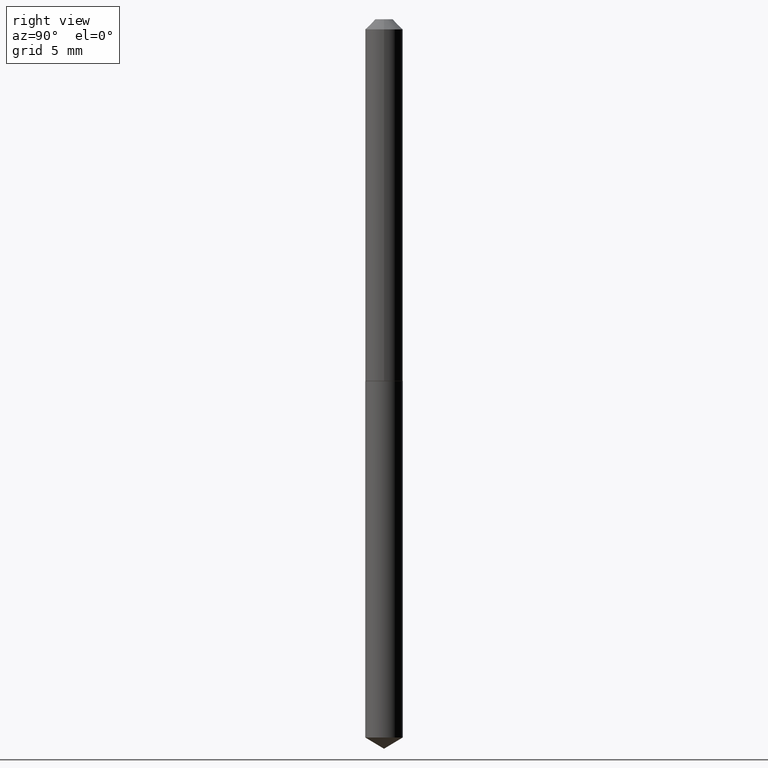
[diagram: clean part render]
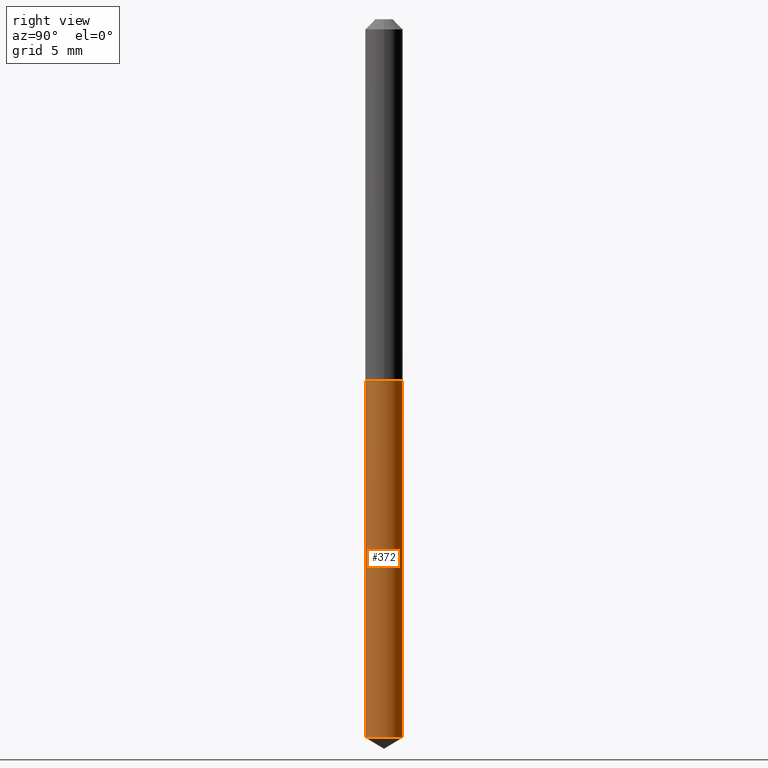
[diagram: same view with one face highlighted and labeled with its STEP entity id]
A machine part, right view. The second image highlights one B-rep face of the part: STEP entity #372.
In plain terms, the highlighted cylindrical surface (edge-blend (fillet) strip) has radius 1.4732 mm, axis along (-0, 0, 1).
Its self-contained STEP definition (entity closure, byte-faithful):
#9 = EDGE_CURVE ( 'NONE', #322, #239, #226, .T. ) ;
#20 = AXIS2_PLACEMENT_3D ( 'NONE', #179, #325, #305 ) ;
#36 = VERTEX_POINT ( 'NONE', #74 ) ;
#43 = DIRECTION ( 'NONE',  ( -2.445398351261919624E-29, 3.491582234303237640E-15, 1.000000000000000000 ) ) ;
#46 = EDGE_LOOP ( 'NONE', ( #205, #319, #347, #47 ) ) ;
#47 = ORIENTED_EDGE ( 'NONE', *, *, #304, .F. ) ;
#50 = AXIS2_PLACEMENT_3D ( 'NONE', #270, #381, #110 ) ;
#64 = VERTEX_POINT ( 'NONE', #300 ) ;
#71 = AXIS2_PLACEMENT_3D ( 'NONE', #207, #43, #293 ) ;
#74 = CARTESIAN_POINT ( 'NONE',  ( -4.050118353057761076E-16, -0.05800000000000389566, -1.116000000000000103 ) ) ;
#108 = CIRCLE ( 'NONE', #20, 0.05800000000000000294 ) ;
#110 = DIRECTION ( 'NONE',  ( -6.982962677686265922E-15, -1.000000000000000000, 2.355041373848502747E-15 ) ) ;
#111 = CARTESIAN_POINT ( 'NONE',  ( 4.121147867408853444E-16, 0.05799999999999611022, -1.116000000000000325 ) ) ;
#145 = FACE_OUTER_BOUND ( 'NONE', #46, .T. ) ;
#179 = CARTESIAN_POINT ( 'NONE',  ( 2.729143187702612729E-29, -3.896493174148951371E-15, -1.116000000000000103 ) ) ;
#186 = DIRECTION ( 'NONE',  ( -2.445398351261919624E-29, 3.491582234303238035E-15, 1.000000000000000000 ) ) ;
#193 = LINE ( 'NONE', #311, #358 ) ;
#205 = ORIENTED_EDGE ( 'NONE', *, *, #9, .T. ) ;
#207 = CARTESIAN_POINT ( 'NONE',  ( 5.417002991141352928E-29, -7.734266080612855846E-15, -2.215150084096401795 ) ) ;
#212 = CYLINDRICAL_SURFACE ( 'NONE', #50, 0.05800000000000000294 ) ;
#226 = CIRCLE ( 'NONE', #71, 0.05800000000000000294 ) ;
#230 = EDGE_CURVE ( 'NONE', #239, #64, #242, .T. ) ;
#239 = VERTEX_POINT ( 'NONE', #356 ) ;
#242 = LINE ( 'NONE', #111, #274 ) ;
#270 = CARTESIAN_POINT ( 'NONE',  ( 2.729143187702612729E-29, -3.896493174148951371E-15, -1.116000000000000103 ) ) ;
#274 = VECTOR ( 'NONE', #186, 39.37007874015748143 ) ;
#293 = DIRECTION ( 'NONE',  ( -6.982962677686265922E-15, -1.000000000000000000, 4.710082747697005495E-15 ) ) ;
#299 = CARTESIAN_POINT ( 'NONE',  ( -4.050118353057491877E-16, -0.05800000000000771899, -2.215150084096401351 ) ) ;
#300 = CARTESIAN_POINT ( 'NONE',  ( 4.121147867409124122E-16, 0.05799999999999611022, -1.116000000000000325 ) ) ;
#304 = EDGE_CURVE ( 'NONE', #322, #36, #193, .T. ) ;
#305 = DIRECTION ( 'NONE',  ( -6.982962677686265922E-15, -1.000000000000000000, 2.355041373848502747E-15 ) ) ;
#311 = CARTESIAN_POINT ( 'NONE',  ( -4.050118353057761076E-16, -0.05800000000000389566, -1.116000000000000103 ) ) ;
#319 = ORIENTED_EDGE ( 'NONE', *, *, #230, .T. ) ;
#322 = VERTEX_POINT ( 'NONE', #299 ) ;
#325 = DIRECTION ( 'NONE',  ( -2.445398351261919624E-29, 3.491582234303237640E-15, 1.000000000000000000 ) ) ;
#329 = EDGE_CURVE ( 'NONE', #36, #64, #108, .T. ) ;
#347 = ORIENTED_EDGE ( 'NONE', *, *, #329, .F. ) ;
#353 = DIRECTION ( 'NONE',  ( -2.445398351261919624E-29, 3.491582234303238035E-15, 1.000000000000000000 ) ) ;
#356 = CARTESIAN_POINT ( 'NONE',  ( 4.121147867409121164E-16, 0.05799999999999225220, -2.215150084096401795 ) ) ;
#358 = VECTOR ( 'NONE', #353, 39.37007874015748143 ) ;
#372 = ADVANCED_FACE ( 'NONE', ( #145 ), #212, .T. ) ;
#381 = DIRECTION ( 'NONE',  ( -2.445398351261919624E-29, 3.491582234303237640E-15, 1.000000000000000000 ) ) ;